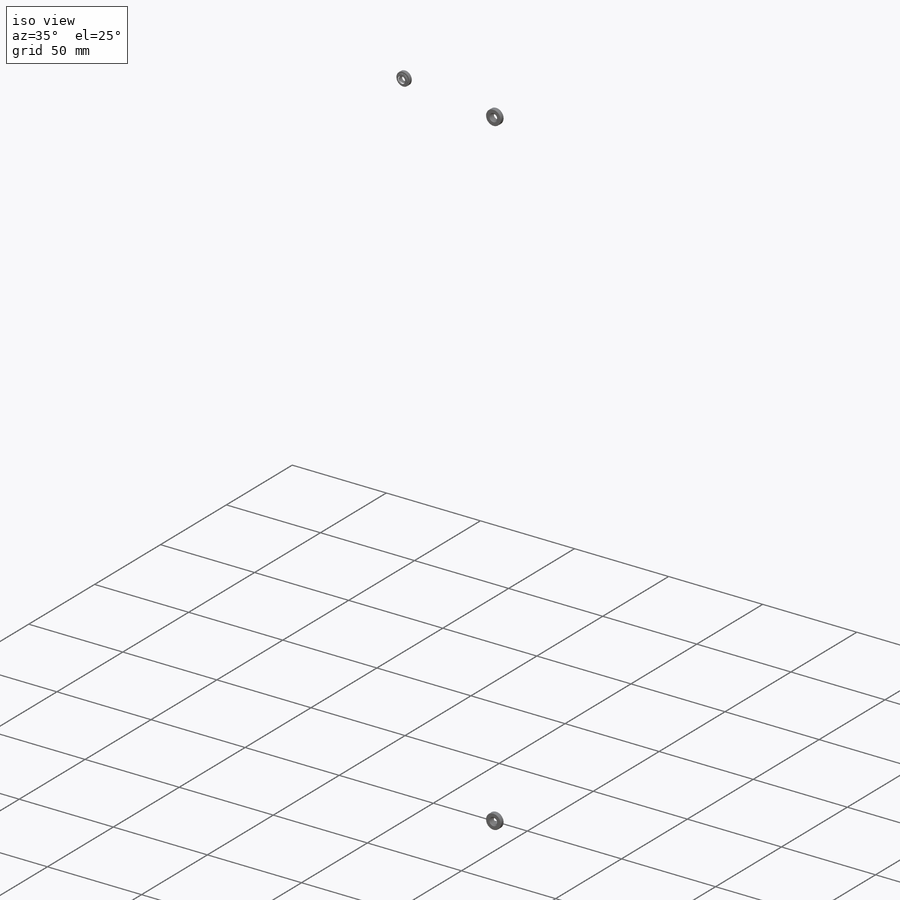
[diagram: iso view]
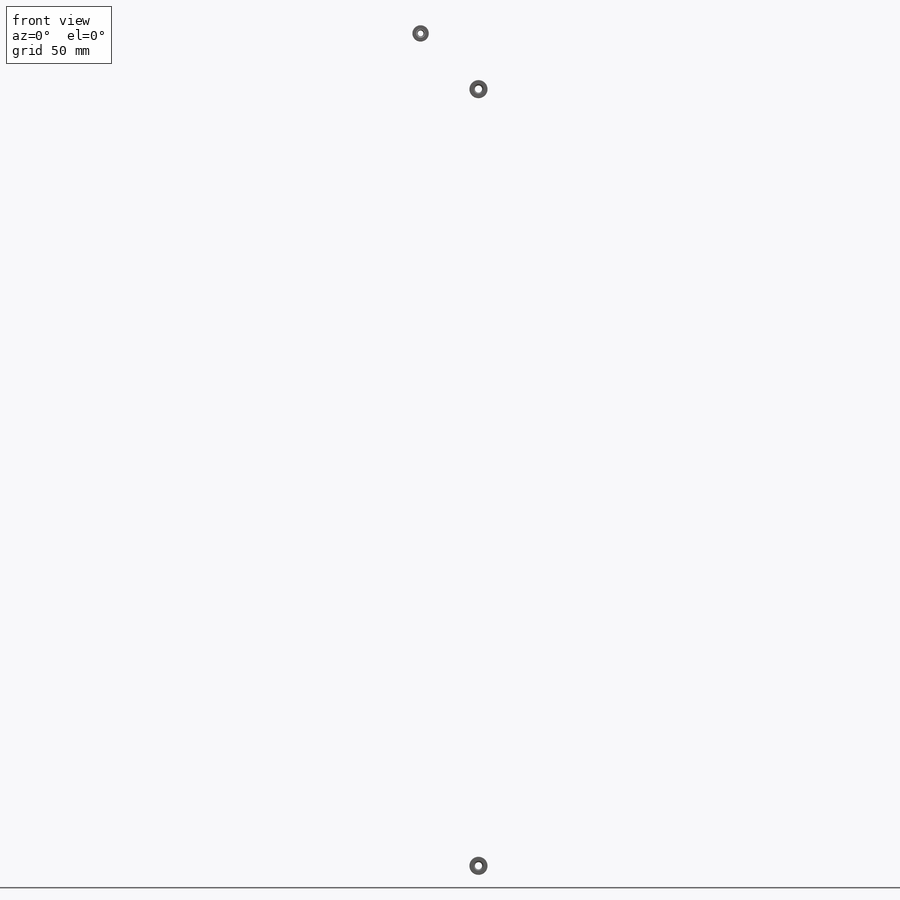
[diagram: front view]
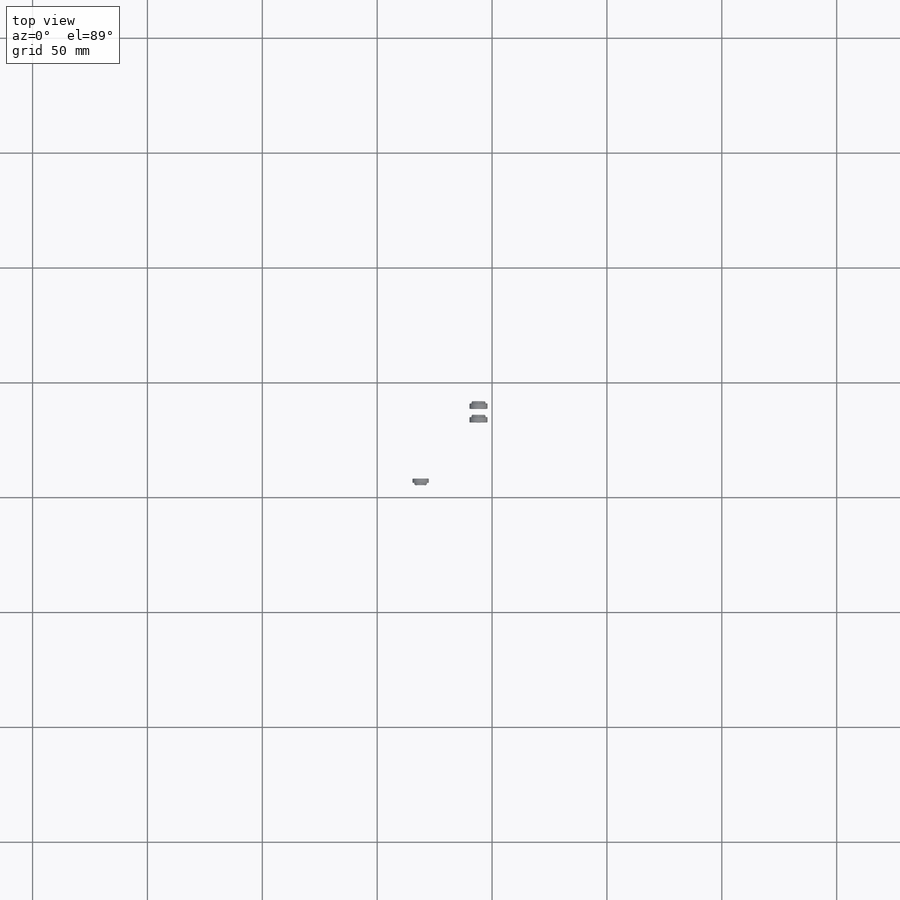
[diagram: top view]
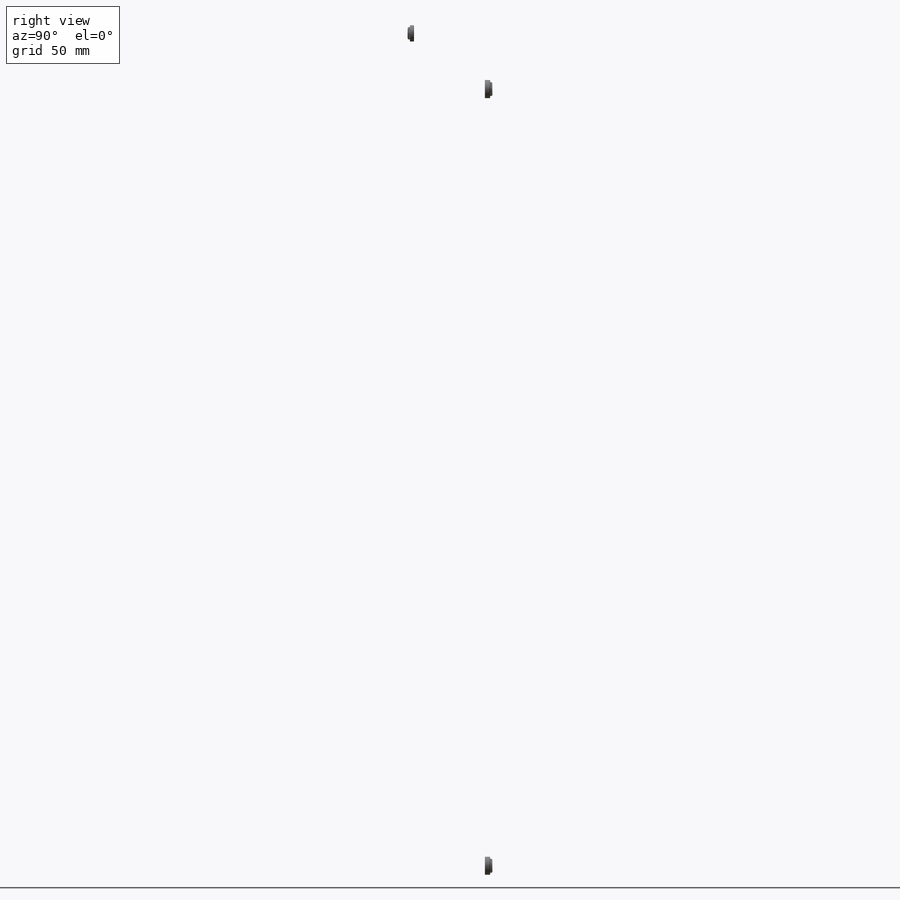
[diagram: right view]
SOLIDWORKS PART (.sldprt)
format: sldprt  version: not decoded by parser v0  size: 2,590,208 bytes
history: native  units: mm
features: sketch x21, cut_extrude x11, fillet x10, extrude x4, move_body x3, plane x2, mirror x2, material x1 + 3 further entries (+27 scaffold rows collapsed; 15 parser-record rows omitted)
feature tree (99):
  scaffold x27  (default folders/planes/origin — collapsed)
  material  "Material <not specified>"
  sketch  "Sketch3"  dims[D1=4.826mm]
  fillet  "Fillet1"  Radius=6.35mm
  sketch  "Sketch4"  dims[D1=5.4102mm D2=25.4mm D3=38.1mm]
  cut_extrude  "Cut-Extrude5"  Depth=2.54mm
  fillet  "Fillet2"  Radius=6.35mm
  fillet  "Fillet3"  Radius=1.524mm
  sketch  "Sketch6"  dims[D1=165.1mm D2=81.915mm]
  cut_extrude  "Cut-Extrude7"  Depth=5.08mm
  "96439A320"
  parser-record x15  (decoder bookkeeping rows leaked as tree rows — omitted from the tree; the rows remain in map.json)
  move_body  "Body-Move/Copy2"
  sketch  "Sketch7"  dims[D1=4.445mm]
  cut_extrude  "Cut-Extrude8"  Depth=5.08mm
  sketch  "Sketch8"  dims[D1=5.08mm]
  cut_extrude  "Cut-Extrude9"  Depth=5.08mm
  sketch  "Sketch10"  dims[c1.D1=4.7625mm c1.D2=0.254mm c1.D3=0.254mm c2.D2=1.524mm]
  sketch  "Sketch11"  dims[D1=0.0mm D2=0.0mm]
  sketch  "Sketch12"
  cut_extrude  "Cut-Extrude12"  Depth=7.9375mm
  sketch  "Sketch13"
  extrude  "Boss-Extrude2"  [1 undecoded]
  fillet  "Fillet7"  Radius=6.35mm
  sketch  "Sketch14"
  "96439A3201"
  move_body  "Body-Move/Copy4"
  sketch  "Sketch15"
  cut_extrude  "Cut-Extrude13"  [1 undecoded]
  sketch  "Sketch16"  dims[D2=0.254mm D1=0.0mm]
  extrude  "Boss-Extrude3"  Depth=1.27mm
  sketch  "Sketch17"  dims[D1=3.81mm D2=3.048mm]
  cut_extrude  "Cut-Extrude14"  Depth=1.27mm
  sketch  "Sketch18"
  extrude  "Boss-Extrude4"  [1 undecoded]
  sketch  "Sketch19"  dims[D1=6.35mm]
  cut_extrude  "Cut-Extrude15"  Depth=5.08mm
  fillet  "Fillet8"  Radius=6.35mm
  sketch  "Sketch21"  dims[D3=4.2164mm D1=184.658mm D2=114.808mm]
  cut_extrude  "Cut-Extrude16"  Depth=2.54mm
  "95185A140"
  move_body  "Body-Move/Copy12"
  plane  "Plane1"
  plane  "Plane2"
  mirror  "Mirror1"
  mirror  "Mirror2"
  sketch  "Sketch22"  dims[D1=13.462mm]
  sketch  "Sketch23"  dims[D1=12.7mm D2=12.7mm D3=11.9634mm D4=11.9634mm]
  sketch  "Sketch24"  dims[D1=25.4mm]
  cut_extrude  "Cut-Extrude17"  Depth=2.54mm
  fillet  "Fillet9"  Radius=2.54mm
  fillet  "Fillet10"  Radius=6.35mm
  sketch  "Sketch25"  dims[D1=10.16mm D2=4.7625mm D3=16.51mm]
  extrude  "Boss-Extrude5"  Depth=1.016mm
  fillet  "Fillet11"  Radius=2.54mm
  fillet  "Fillet12"  Radius=1.524mm
  sketch  "Sketch26"  dims[D1=5.08mm]
  cut_extrude  "Cut-Extrude18"  Depth=2.54mm
  fillet  "Fillet6"  Radius=6.35mm
decode coverage: 38 of 51 modeling features carry decoded parameters; 3 rows unclassified (native names shown)
note: 3 parameter values undecoded
summary: no parameter record found for 3 features
note: suppression state not decoded; provenance and decode notes live in map.json
